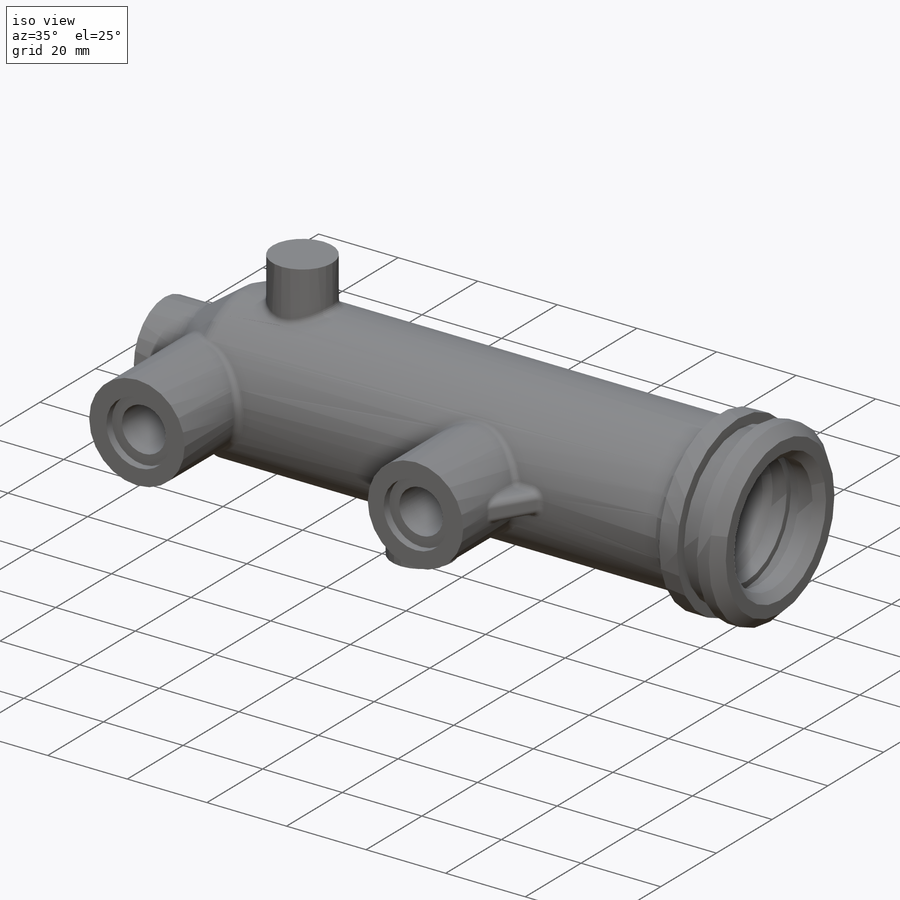
[diagram: iso view]
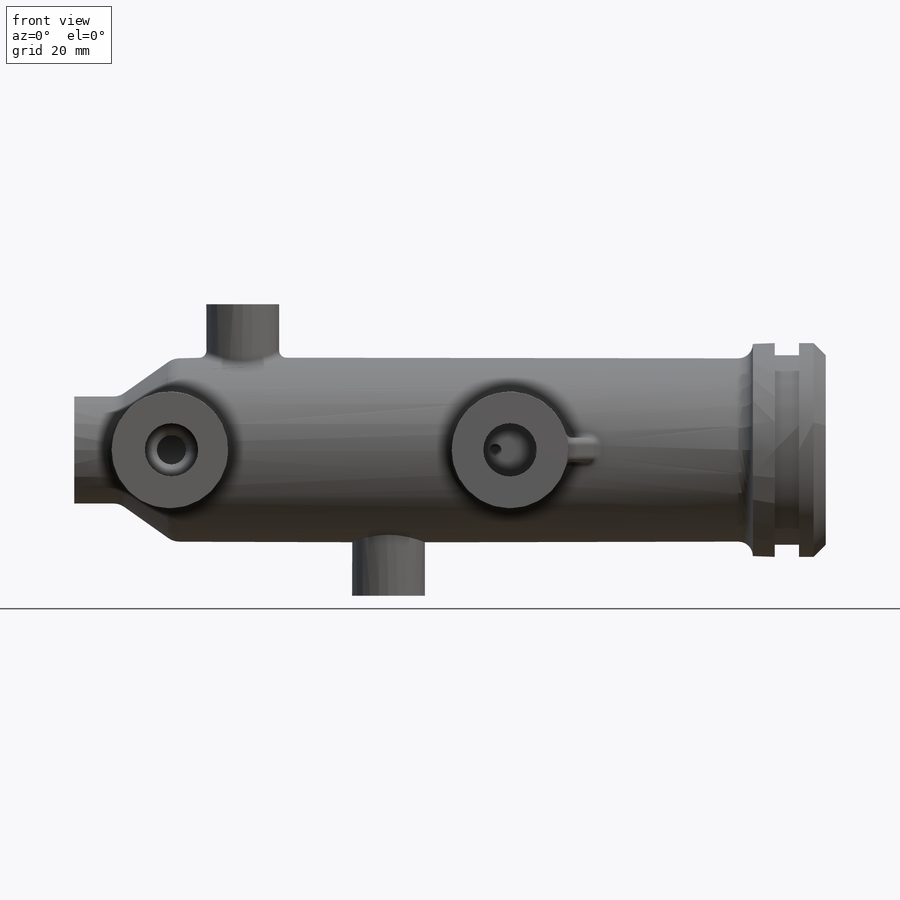
[diagram: front view]
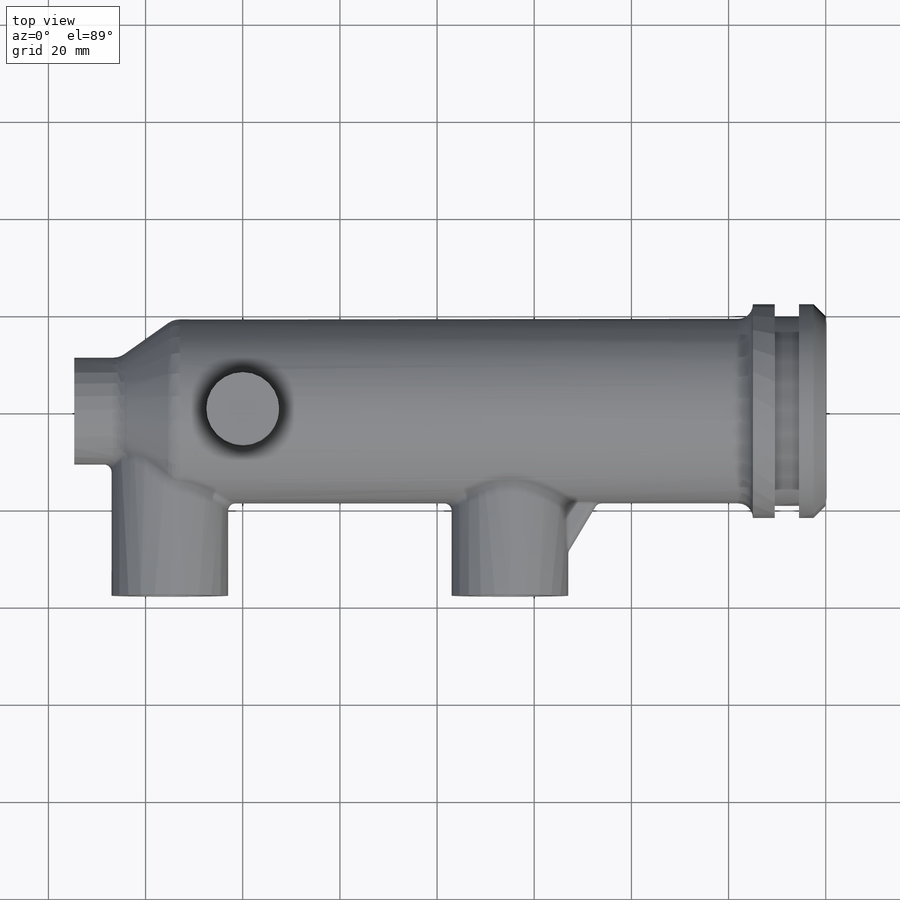
[diagram: top view]
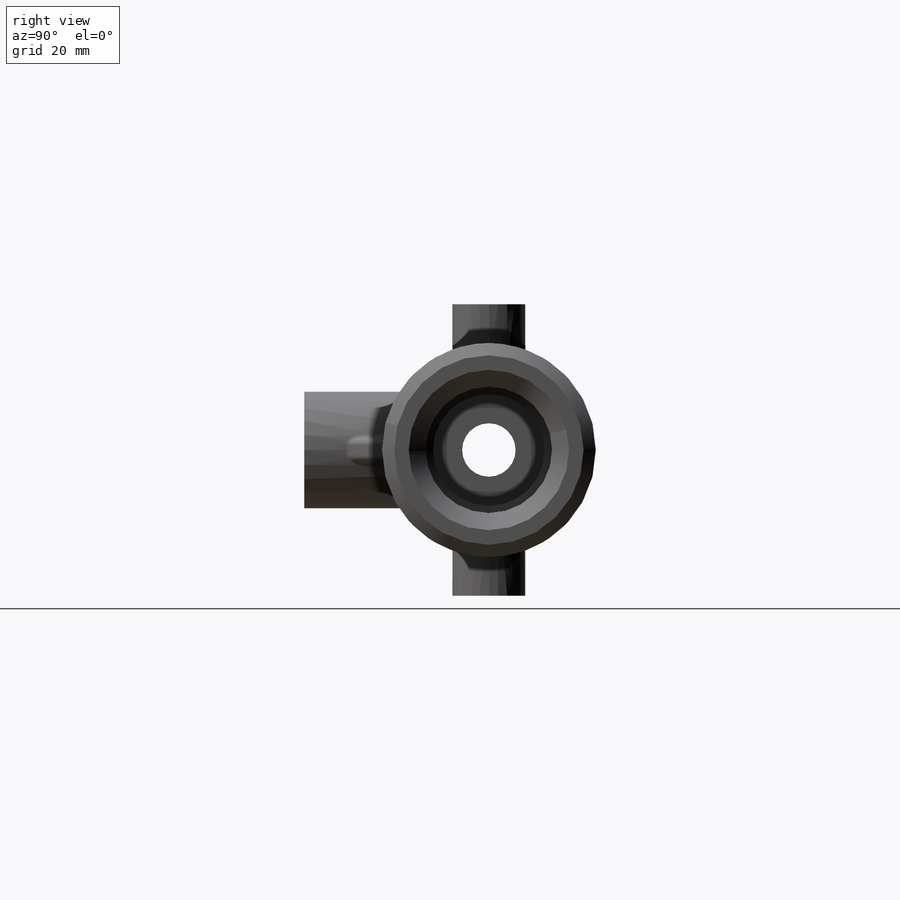
[diagram: right view]
SOLIDWORKS PART (.sldprt)
format: sldprt  version: not decoded by parser v0  size: 507,904 bytes
history: native  units: mm
features: sketch x31, plane x11, hole x10, chamfer x6, extrude x5, thread x3, cut_revolve x2, cut_extrude x2, material x1, revolve x1, fillet x1 + 1 further entry (+8 scaffold rows collapsed)
feature tree (82):
  scaffold x8  (default folders/planes/origin — collapsed)
  material  "Matériau <non spécifié>"
  "Corps de surface"
  plane  "Plan1"
  plane  "Plan2"
  plane  "Plan3"
  sketch  "Esquisse1"  dims[c1.D7=3.0mm c1.D9=4.0mm c1.D10=4.0mm c1.D1=5.5mm c1.D2=22.0mm c1.D3=5.0mm c1.D4=2.5mm c1.D5=2.5mm c1.D6=4.5mm c1.D8=115.0mm c2.D10=10.0mm c2.D11=8.0mm c2.D12=11.0mm c2.D13=19.0mm c2.D14=9.0mm c2.D15=7.0mm]
  revolve  "Base-Révolution"  Angle=360deg
  chamfer  "Chanfrein1"  Distance=2.5mm Angle=45deg
  sketch  "Esquisse9"  dims[D1=24.0mm D2=24.0mm D3=20.0mm D4=67.0mm]
  plane  "Plan4"  Offset=38mm
  sketch  "Esquisse11"  dims[D1=24.0mm D2=65.0mm]
  extrude  "Boss.-Extru.3"  [1 undecoded]
  sketch  "Esquisse12"  dims[D1=24.0mm D2=70.0mm]
  extrude  "Boss.-Extru.12"  Depth=38mm
  hole  "Perçage4"  Diameter=11mm Depth=154.67878mm
  sketch  "Esquisse14"
  sketch  "Esquisse13"  dims[Diamètre=11.0mm Profondeur=~154.67878mm]
  thread  "Représentation de filetage3"  [2 undecoded]
  hole  "Perçage14"  Diameter=16mm Depth=2.5mm
  sketch  "Esquisse48"
  sketch  "Esquisse47"  dims[Diamètre=16.0mm Profondeur=2.5mm D1=13.5mm D2=14.0mm]
  hole  "Perçage5"  Diameter=23mm Depth=124mm
  sketch  "Esquisse16"
  sketch  "Esquisse15"  dims[Diamètre=23.0mm Profondeur=124.0mm]
  hole  "Perçage6"  Diameter=26mm Depth=110mm
  sketch  "Esquisse18"
  sketch  "Esquisse17"  dims[Diamètre=26.0mm Profondeur=110.0mm]
  chamfer  "Chanfrein3"  Distance=1.5mm Angle=45deg
  plane  "Plan5"  Offset=30mm
  sketch  "Esquisse20"  dims[D1=15.0mm D2=120.0mm]
  extrude  "Boss.-Extru.13"  [1 undecoded]
  plane  "Plan6"  Offset=30mm
  sketch  "Esquisse22"  dims[D1=15.0mm D2=30.0mm]
  extrude  "Boss.-Extru.14"  [1 undecoded]
  hole  "Perçage9"  Diameter=11mm Depth=19mm
  sketch  "Esquisse28"
  sketch  "Esquisse27"  dims[Diamètre=11.0mm Profondeur=19.0mm]
  thread  "Représentation de filetage1"  [2 undecoded]
  hole  "Perçage16"  Diameter=16mm Depth=2mm
  sketch  "Esquisse52"
  sketch  "Esquisse51"  dims[Diamètre=16.0mm Profondeur=2.0mm D1=16.0mm D2=14.0mm]
  cut_revolve  "Enlever de la matière-Révolution5"  [1 undecoded]
  sketch  "Esquisse42"
  hole  "Perçage12"  Diameter=29mm Depth=12mm
  sketch  "Esquisse39"
  sketch  "Esquisse38"  dims[Diamètre=29.0mm Profondeur=12.0mm]
  cut_revolve  "Enlever de la matière-Révolution1"  [1 undecoded]
  sketch  "Esquisse40"
  chamfer  "Chanfrein12"  Distance=1.5mm Angle=45deg
  chamfer  "Chanfrein11"  Distance=2mm Angle=45deg
  hole  "Perçage10"  Diameter=11mm Depth=19mm
  sketch  "Esquisse30"
  sketch  "Esquisse29"  dims[Diamètre=11.0mm Profondeur=19.0mm]
  thread  "Représentation de filetage2"  [2 undecoded]
  hole  "Perçage17"  Diameter=16mm Depth=2mm
  sketch  "Esquisse54"
  sketch  "Esquisse53"  dims[Diamètre=16.0mm Profondeur=2.0mm D1=16.0mm D2=14.0mm]
  chamfer  "Chanfrein9"  [1 undecoded]
  hole  "Perçage11"  Diameter=6mm Depth=19mm
  sketch  "Esquisse32"
  sketch  "Esquisse31"  dims[Diamètre=6.0mm Profondeur=19.0mm D1=2.5mm D2=45.0deg]
  sketch  "Esquisse35"  dims[c1.D1=1.5mm c1.D2=70.0mm c2.D1=68.0mm]
  cut_extrude  "Enlèv. mat.-Extru.1"  [1 undecoded]
  sketch  "Esquisse36"  dims[D1=2.5mm]
  cut_extrude  "Enlèv. mat.-Extru.2"  Depth=3.5mm
  chamfer  "Chanfrein5"  Distance=0.5mm Angle=45deg
  plane  "Plan7"  Offset=2.5mm
  sketch  "Esquisse43"  dims[c1.D1=7.0mm c1.D2=11.5mm c2.D1=11.5mm c3.D1=60.0deg c4.D1=~65.347931mm c5.D1=60.0deg c6.D1=10.0mm c6.D2=6.0mm c7.D1=6.0mm]
  extrude  "Boss.-Extru.20"  Depth=5mm
  fillet  "Congé1"  Radius=1.5mm
  plane  "Plan A"  Offset=0mm
  plane  "Plan B"  Offset=120mm
  plane  "Plan C"  Offset=65mm
  plane  "Plan D"  Offset=9mm
decode coverage: 39 of 61 modeling features carry decoded parameters; 1 rows unclassified (native names shown)
note: ~ marks probable driven/reference dimensions
note: 13 parameter values undecoded
summary: no parameter record found for 10 features; Diameter pulled from absorbed wizard sketch
note: suppression state not decoded; provenance and decode notes live in map.json
